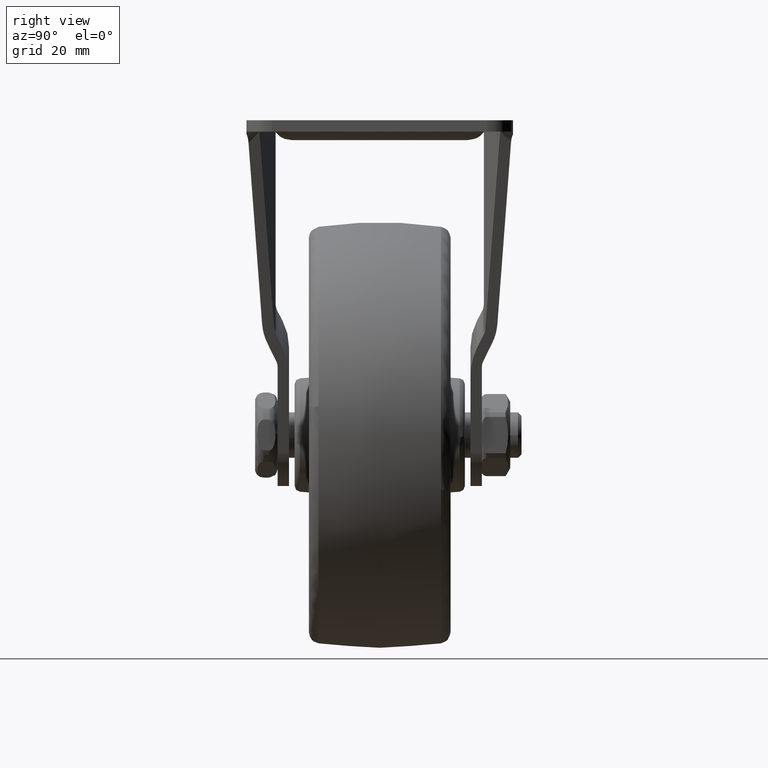
[diagram: clean part render]
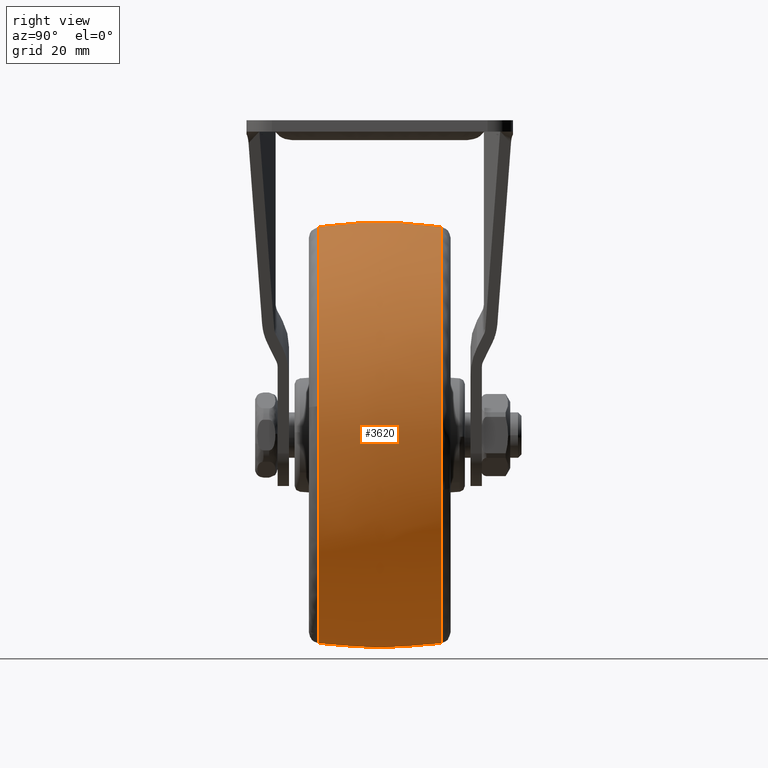
[diagram: same view with one face highlighted and labeled with its STEP entity id]
A machine part, right view. The second image highlights one B-rep face of the part: STEP entity #3620.
In plain terms, the highlighted face is a freeform B-spline surface patch.
Its self-contained STEP definition (entity closure, byte-faithful):
#1558=CARTESIAN_POINT('',(13.433285123942341,-10.787670483506901,-34.174755469280761));
#1559=VERTEX_POINT('',#1558);
#1573=CARTESIAN_POINT('',(36.369860856472997,-10.787664291407150,5.059675793078215));
#1574=VERTEX_POINT('',#1573);
#1575=CARTESIAN_POINT('',(13.433285123942333,-10.787670483506902,-34.174755469280761));
#1576=CARTESIAN_POINT('',(36.720118667525874,-10.787669163530639,-25.021254350921556));
#1577=CARTESIAN_POINT('',(36.720118360343697,-10.787665112933350,0.000000905822019));
#1578=CARTESIAN_POINT('',(36.720118329136433,-10.787664701424841,2.541961682272614));
#1579=CARTESIAN_POINT('',(36.369860856472997,-10.787664291407156,5.059675793078215));
#1587=(BOUNDED_CURVE()B_SPLINE_CURVE(2,(#1575,#1576,#1577,#1578,#1579),.UNSPECIFIED.,.F.,.U.)B_SPLINE_CURVE_WITH_KNOTS((3,2,3),(0.062116636352828,0.250000000000000,0.273792604329098),.UNSPECIFIED.)CURVE()GEOMETRIC_REPRESENTATION_ITEM()RATIONAL_B_SPLINE_CURVE((0.890615558862176,0.779880947439525,1.0,0.972125230136382,0.949556167233802))REPRESENTATION_ITEM(''));
#1588=EDGE_CURVE('',#1559,#1574,#1587,.T.);
#1687=CARTESIAN_POINT('',(0.0,-10.787658965665130,36.720121355602352));
#1688=VERTEX_POINT('',#1687);
#1689=CARTESIAN_POINT('',(36.369860856472997,-10.787664291407156,5.059675793078215));
#1690=CARTESIAN_POINT('',(31.965347720677364,-10.787658877637318,36.720121272136666));
#1691=CARTESIAN_POINT('',(0.0,-10.787658965665130,36.720121355602352));
#1699=(BOUNDED_CURVE()B_SPLINE_CURVE(2,(#1689,#1690,#1691),.UNSPECIFIED.,.F.,.U.)B_SPLINE_CURVE_WITH_KNOTS((3,3),(0.273792604329098,0.500000000000000),.UNSPECIFIED.)CURVE()GEOMETRIC_REPRESENTATION_ITEM()RATIONAL_B_SPLINE_CURVE((0.949556167233802,0.734981551050165,1.0))REPRESENTATION_ITEM(''));
#1700=EDGE_CURVE('',#1574,#1688,#1699,.T.);
#1702=CARTESIAN_POINT('',(-36.474525320496070,-10.787669503890401,4.239835200311259));
#1703=VERTEX_POINT('',#1702);
#1717=CARTESIAN_POINT('',(0.0,-10.787671727751700,-36.720119500673597));
#1718=VERTEX_POINT('',#1717);
#1719=CARTESIAN_POINT('',(-36.474525320496070,-10.787669503890399,4.239835200311259));
#1720=CARTESIAN_POINT('',(-36.720119813454048,-10.787669561246229,2.127030707952331));
#1721=CARTESIAN_POINT('',(-36.720119804155253,-10.787669625655351,0.000000035277022));
#1722=CARTESIAN_POINT('',(-36.720119643624770,-10.787670737586000,-36.720119484056823));
#1723=CARTESIAN_POINT('',(0.0,-10.787671727751700,-36.720119500673597));
#1731=(BOUNDED_CURVE()B_SPLINE_CURVE(2,(#1719,#1720,#1721,#1722,#1723),.UNSPECIFIED.,.F.,.U.)B_SPLINE_CURVE_WITH_KNOTS((3,2,3),(0.730000116571138,0.750000000000000,1.0),.UNSPECIFIED.)CURVE()GEOMETRIC_REPRESENTATION_ITEM()RATIONAL_B_SPLINE_CURVE((0.956886347631048,0.976568679066507,1.0,0.707106781186548,1.0))REPRESENTATION_ITEM(''));
#1732=EDGE_CURVE('',#1703,#1718,#1731,.T.);
#1734=CARTESIAN_POINT('',(0.0,-10.787671727751700,-36.720119500673597));
#1735=CARTESIAN_POINT('',(6.957792445564192,-10.787671326789649,-36.720118796433809));
#1736=CARTESIAN_POINT('',(13.433285123942333,-10.787670483506902,-34.174755469280761));
#1744=(BOUNDED_CURVE()B_SPLINE_CURVE(2,(#1734,#1735,#1736),.UNSPECIFIED.,.F.,.U.)B_SPLINE_CURVE_WITH_KNOTS((3,3),(0.0,0.062116636352828),.UNSPECIFIED.)CURVE()GEOMETRIC_REPRESENTATION_ITEM()RATIONAL_B_SPLINE_CURVE((1.0,0.927225833747023,0.890615558862176))REPRESENTATION_ITEM(''));
#1745=EDGE_CURVE('',#1718,#1559,#1744,.T.);
#1780=CARTESIAN_POINT('',(35.423661090667892,10.787670152564511,-9.671150951170290));
#1781=VERTEX_POINT('',#1780);
#1782=CARTESIAN_POINT('',(0.0,10.787666905720769,36.720118509541173));
#1783=VERTEX_POINT('',#1782);
#1784=CARTESIAN_POINT('',(35.423661090667892,10.787670152564511,-9.671150951170290));
#1785=CARTESIAN_POINT('',(36.720116078810250,10.787669787655934,-4.922472251932405));
#1786=CARTESIAN_POINT('',(36.720116078810250,10.787669446989110,0.000001215365460));
#1787=CARTESIAN_POINT('',(36.720116078810257,10.787666905720769,36.720118509541166));
#1788=CARTESIAN_POINT('',(0.0,10.787666905720769,36.720118509541173));
#1796=(BOUNDED_CURVE()B_SPLINE_CURVE(2,(#1784,#1785,#1786,#1787,#1788),.UNSPECIFIED.,.F.,.U.)B_SPLINE_CURVE_WITH_KNOTS((3,2,3),(0.205098069450421,0.250000000000000,0.500000000000000),.UNSPECIFIED.)CURVE()GEOMETRIC_REPRESENTATION_ITEM()RATIONAL_B_SPLINE_CURVE((0.913685078198429,0.947394116121583,1.0,0.707106781186548,1.0))REPRESENTATION_ITEM(''));
#1797=EDGE_CURVE('',#1781,#1783,#1796,.T.);
#1900=CARTESIAN_POINT('',(0.0,10.787671988257440,-36.720116078810250));
#1901=VERTEX_POINT('',#1900);
#1902=CARTESIAN_POINT('',(0.0,10.787671988257440,-36.720116078810250));
#1903=CARTESIAN_POINT('',(28.038917632278007,10.787671988257440,-36.720116078810250));
#1904=CARTESIAN_POINT('',(35.423661090667892,10.787670152564511,-9.671150951170290));
#1912=(BOUNDED_CURVE()B_SPLINE_CURVE(2,(#1902,#1903,#1904),.UNSPECIFIED.,.F.,.U.)B_SPLINE_CURVE_WITH_KNOTS((3,3),(0.0,0.205098069450421),.UNSPECIFIED.)CURVE()GEOMETRIC_REPRESENTATION_ITEM()RATIONAL_B_SPLINE_CURVE((1.0,0.759712665064964,0.913685078198429))REPRESENTATION_ITEM(''));
#1913=EDGE_CURVE('',#1901,#1781,#1912,.T.);
#1915=CARTESIAN_POINT('',(-36.474522543947792,10.787677157764010,4.239834797674980));
#1916=VERTEX_POINT('',#1915);
#1917=CARTESIAN_POINT('',(-36.474522543947792,10.787677157764007,4.239834797674980));
#1918=CARTESIAN_POINT('',(-36.720116989040172,10.787677024436761,2.127030539377610));
#1919=CARTESIAN_POINT('',(-36.720116961979492,10.787676874713680,0.000000102660463));
#1920=CARTESIAN_POINT('',(-36.720116494815869,10.787674289960391,-36.720116030453347));
#1921=CARTESIAN_POINT('',(0.0,10.787671988257440,-36.720116078810250));
#1929=(BOUNDED_CURVE()B_SPLINE_CURVE(2,(#1917,#1918,#1919,#1920,#1921),.UNSPECIFIED.,.F.,.U.)B_SPLINE_CURVE_WITH_KNOTS((3,2,3),(0.730000116936687,0.750000000000000,1.0),.UNSPECIFIED.)CURVE()GEOMETRIC_REPRESENTATION_ITEM()RATIONAL_B_SPLINE_CURVE((0.956886348350538,0.976568679494775,1.0,0.707106781186548,1.0))REPRESENTATION_ITEM(''));
#1930=EDGE_CURVE('',#1916,#1901,#1929,.T.);
#3528=CARTESIAN_POINT('',(-36.309422936630718,-11.875126293369016,4.220667987128436));
#3529=CARTESIAN_POINT('',(-37.249186561240641,-5.975250702957267,4.329907680989209));
#3530=CARTESIAN_POINT('',(-37.249186561240649,-6.888411E-015,4.329907680989209));
#3531=CARTESIAN_POINT('',(-37.249186561240634,5.975253034580870,4.329907680989209));
#3532=CARTESIAN_POINT('',(-36.309422207839489,11.875130868750071,4.220667902412526));
#3533=CARTESIAN_POINT('',(-36.553908576904540,-11.875126293369014,2.117415008759252));
#3534=CARTESIAN_POINT('',(-37.499999999999993,-5.975250702957265,2.172218127137308));
#3535=CARTESIAN_POINT('',(-37.499999999999993,-6.888411E-015,2.172218127137307));
#3536=CARTESIAN_POINT('',(-37.500000000000007,5.975253034580871,2.172218127137308));
#3537=CARTESIAN_POINT('',(-36.553907843206069,11.875130868750063,2.117414966259170));
#3538=CARTESIAN_POINT('',(-36.553908576904540,-11.875126293369014,0.0));
#3539=CARTESIAN_POINT('',(-37.500000000000000,-5.975250702957266,0.0));
#3540=CARTESIAN_POINT('',(-37.500000000000000,-6.888411E-015,0.0));
#3541=CARTESIAN_POINT('',(-37.500000000000000,5.975253034580869,0.0));
#3542=CARTESIAN_POINT('',(-36.553907843206069,11.875130868750071,0.0));
#3543=CARTESIAN_POINT('',(-36.553908576904533,-11.875126293369016,-36.553908576904533));
#3544=CARTESIAN_POINT('',(-37.500000000000007,-5.975250702957266,-37.500000000000007));
#3545=CARTESIAN_POINT('',(-37.499999999999993,-6.888411E-015,-37.499999999999993));
#3546=CARTESIAN_POINT('',(-37.500000000000000,5.975253034580870,-37.500000000000000));
#3547=CARTESIAN_POINT('',(-36.553907843206090,11.875130868750066,-36.553907843206090));
#3548=CARTESIAN_POINT('',(0.0,-11.875126293369014,-36.553908576904540));
#3549=CARTESIAN_POINT('',(0.0,-5.975250702957266,-37.500000000000000));
#3550=CARTESIAN_POINT('',(0.0,-6.888411E-015,-37.500000000000000));
#3551=CARTESIAN_POINT('',(0.0,5.975253034580869,-37.500000000000000));
#3552=CARTESIAN_POINT('',(0.0,11.875130868750071,-36.553907843206069));
#3553=CARTESIAN_POINT('',(36.553908576904533,-11.875126293369016,-36.553908576904533));
#3554=CARTESIAN_POINT('',(37.500000000000007,-5.975250702957266,-37.500000000000007));
#3555=CARTESIAN_POINT('',(37.499999999999993,-6.888411E-015,-37.499999999999993));
#3556=CARTESIAN_POINT('',(37.500000000000000,5.975253034580870,-37.500000000000000));
#3557=CARTESIAN_POINT('',(36.553907843206090,11.875130868750066,-36.553907843206090));
#3558=CARTESIAN_POINT('',(36.553908576904540,-11.875126293369014,0.0));
#3559=CARTESIAN_POINT('',(37.500000000000000,-5.975250702957266,0.0));
#3560=CARTESIAN_POINT('',(37.500000000000000,-6.888411E-015,0.0));
#3561=CARTESIAN_POINT('',(37.500000000000000,5.975253034580869,0.0));
#3562=CARTESIAN_POINT('',(36.553907843206069,11.875130868750071,0.0));
#3563=CARTESIAN_POINT('',(36.553908576904533,-11.875126293369016,36.553908576904533));
#3564=CARTESIAN_POINT('',(37.500000000000007,-5.975250702957266,37.500000000000007));
#3565=CARTESIAN_POINT('',(37.499999999999993,-6.888411E-015,37.499999999999993));
#3566=CARTESIAN_POINT('',(37.500000000000000,5.975253034580870,37.500000000000000));
#3567=CARTESIAN_POINT('',(36.553907843206090,11.875130868750066,36.553907843206090));
#3568=CARTESIAN_POINT('',(0.0,-11.875126293369014,36.553908576904540));
#3569=CARTESIAN_POINT('',(0.0,-5.975250702957266,37.500000000000000));
#3570=CARTESIAN_POINT('',(0.0,-6.888411E-015,37.500000000000000));
#3571=CARTESIAN_POINT('',(0.0,5.975253034580869,37.500000000000000));
#3572=CARTESIAN_POINT('',(0.0,11.875130868750071,36.553907843206069));
#3580=(BOUNDED_SURFACE()B_SPLINE_SURFACE(2,2,((#3528,#3533,#3538,#3543,#3548,#3553,#3558,#3563,#3568),(#3529,#3534,#3539,#3544,#3549,#3554,#3559,#3564,#3569),(#3530,#3535,#3540,#3545,#3550,#3555,#3560,#3565,#3570),(#3531,#3536,#3541,#3546,#3551,#3556,#3561,#3566,#3571),(#3532,#3537,#3542,#3547,#3552,#3557,#3562,#3567,#3572)),.UNSPECIFIED.,.F.,.F.,.U.)B_SPLINE_SURFACE_WITH_KNOTS((3,2,3),(3,2,2,2,3),(0.0,12.128630864293550,24.257266362421969),(0.0,4.970561711536947,67.102596067501210,129.234630423465490,191.366664779429700),.UNSPECIFIED.)GEOMETRIC_REPRESENTATION_ITEM()RATIONAL_B_SPLINE_SURFACE(((0.923126195904401,0.942114200750951,0.964718967527182,0.682159323877755,0.964718967527182,0.682159323877755,0.964718967527182,0.682159323877755,0.964718967527182),(0.936885940051188,0.956156972385968,0.979098676634800,0.692327313699242,0.979098676634800,0.692327313699242,0.979098676634800,0.692327313699242,0.979098676634800),(0.956886126402807,0.976568547383107,1.0,0.707106781186548,1.0,0.707106781186548,1.0,0.707106781186548,1.0),(0.936885932409966,0.956156964587572,0.979098668649291,0.692327308052634,0.979098668649291,0.692327308052634,0.979098668649291,0.692327308052634,0.979098668649291),(0.923126185390374,0.942114190020658,0.964718956539431,0.682159316108242,0.964718956539431,0.682159316108242,0.964718956539431,0.682159316108242,0.964718956539431)))REPRESENTATION_ITEM('')SURFACE());
#3581=ORIENTED_EDGE('',*,*,#1732,.F.);
#3582=CARTESIAN_POINT('',(-36.474525320496070,-10.787669503890404,4.239835200311259));
#3583=CARTESIAN_POINT('',(-37.249188969220469,-5.422025010327920,4.329883396628505));
#3584=CARTESIAN_POINT('',(-37.249188557894556,-0.000000120419640,4.329883328739514));
#3585=CARTESIAN_POINT('',(-37.249188146568351,5.422028779169767,4.329883260850473));
#3586=CARTESIAN_POINT('',(-36.474522543947792,10.787677157764012,4.239834797674980));
#3594=(BOUNDED_CURVE()B_SPLINE_CURVE(2,(#3582,#3583,#3584,#3585,#3586),.UNSPECIFIED.,.F.,.U.)B_SPLINE_CURVE_WITH_KNOTS((3,2,3),(0.429080124979982,0.500000000000000,0.570919926469855),.UNSPECIFIED.)CURVE()GEOMETRIC_REPRESENTATION_ITEM()RATIONAL_B_SPLINE_CURVE((0.925677175333319,0.938702484738285,0.956886118190660,0.938702471546708,0.925677156434528))REPRESENTATION_ITEM(''));
#3595=EDGE_CURVE('',#1703,#1916,#3594,.T.);
#3596=ORIENTED_EDGE('',*,*,#3595,.T.);
#3597=ORIENTED_EDGE('',*,*,#1930,.T.);
#3598=ORIENTED_EDGE('',*,*,#1913,.T.);
#3599=ORIENTED_EDGE('',*,*,#1797,.T.);
#3600=CARTESIAN_POINT('',(0.0,-10.787658965665136,36.720121355602352));
#3601=CARTESIAN_POINT('',(0.0,-5.422019658021465,37.499999587915660));
#3602=CARTESIAN_POINT('',(0.0,-0.000000120419438,37.499999171502402));
#3603=CARTESIAN_POINT('',(0.0,5.422023572213659,37.499998755088811));
#3604=CARTESIAN_POINT('',(0.0,10.787666905720773,36.720118509541166));
#3612=(BOUNDED_CURVE()B_SPLINE_CURVE(2,(#3600,#3601,#3602,#3603,#3604),.UNSPECIFIED.,.F.,.U.)B_SPLINE_CURVE_WITH_KNOTS((3,2,3),(0.429080193657601,0.500000000000000,0.570919859657281),.UNSPECIFIED.)CURVE()GEOMETRIC_REPRESENTATION_ITEM()RATIONAL_B_SPLINE_CURVE((0.967384919650246,0.980997095163183,1.0,0.980997080877503,0.967384899183990))REPRESENTATION_ITEM(''));
#3613=EDGE_CURVE('',#1688,#1783,#3612,.T.);
#3614=ORIENTED_EDGE('',*,*,#3613,.F.);
#3615=ORIENTED_EDGE('',*,*,#1700,.F.);
#3616=ORIENTED_EDGE('',*,*,#1588,.F.);
#3617=ORIENTED_EDGE('',*,*,#1745,.F.);
#3618=EDGE_LOOP('',(#3581,#3596,#3597,#3598,#3599,#3614,#3615,#3616,#3617));
#3619=FACE_OUTER_BOUND('',#3618,.T.);
#3620=ADVANCED_FACE('',(#3619),#3580,.T.);